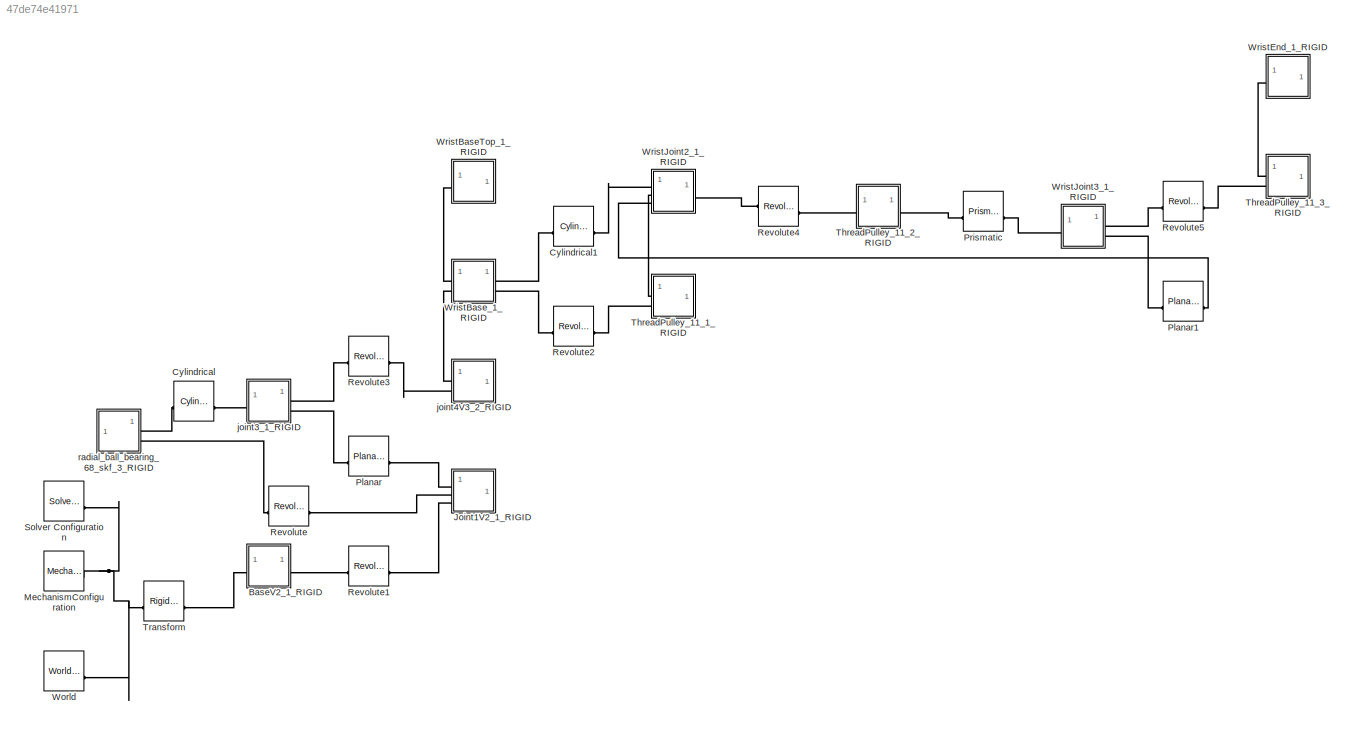
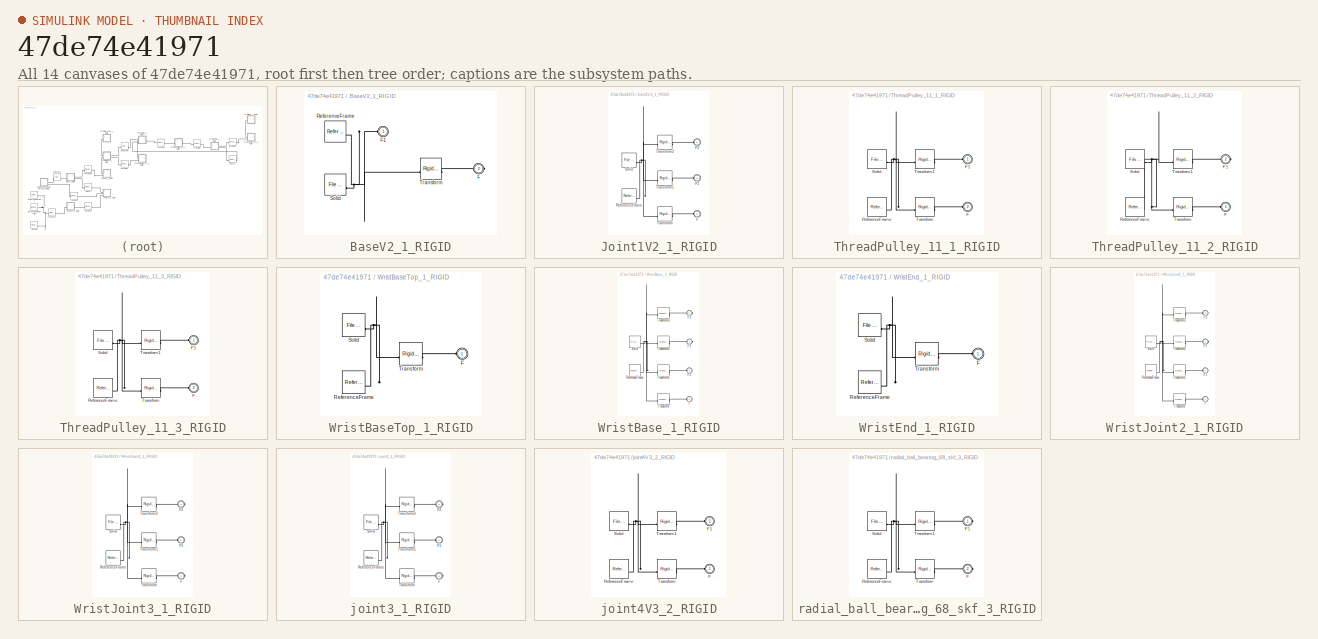
[diagram: thumbnail index - all 14 canvases of the model, root first then tree order]
MODEL slx_47de74e41971
KIND model
CONFIG AbsTol = auto
CONFIG EnableMultiTasking = off
CONFIG FixedStep = auto
CONFIG MaxStep = auto
CONFIG MinStep = auto
CONFIG RelTol = 1e-3
CONFIG SampleTimeConstraint = Unconstrained
CONFIG SolverName = VariableStepAuto
CONFIG StartTime = 0.0
CONFIG StopTime = 10.0
WORKSPACE source: external: MATLAB File  (data not in archive)
BLOCK [SubSystem] BaseV2_1_RIGID
BLOCK [PMIOPort] BaseV2_1_RIGID/F
  Port = 2
  Side = Right
BLOCK [PMIOPort] BaseV2_1_RIGID/F1
  Side = Left
BLOCK [Reference] BaseV2_1_RIGID/ReferenceFrame  REF=sm_lib/Frames and
Transforms/Reference
Frame
  SourceBlock = sm_lib/Frames and\nTransforms/Reference\nFrame
  SourceType = Reference\nFrame
BLOCK [Reference] BaseV2_1_RIGID/Solid  REF=sm_lib/Body Elements/File Solid
  SourceBlock = sm_lib/Body Elements/File Solid
  SourceType = File Solid
BLOCK [Reference] BaseV2_1_RIGID/Transform  REF=sm_lib/Frames and
Transforms/Rigid
Transform
  SourceBlock = sm_lib/Frames and\nTransforms/Rigid\nTransform
  SourceType = Rigid\nTransform
BLOCK [Reference] Cylindrical  REF=sm_lib/Joints/Cylindrical
Joint
  SourceBlock = sm_lib/Joints/Cylindrical\nJoint
  SourceType = Cylindrical\nJoint
BLOCK [Reference] Cylindrical1  REF=sm_lib/Joints/Cylindrical
Joint
  SourceBlock = sm_lib/Joints/Cylindrical\nJoint
  SourceType = Cylindrical\nJoint
BLOCK [SubSystem] Joint1V2_1_RIGID
BLOCK [PMIOPort] Joint1V2_1_RIGID/F
  Port = 2
  Side = Left
BLOCK [PMIOPort] Joint1V2_1_RIGID/F1
  Port = 3
  Side = Left
BLOCK [PMIOPort] Joint1V2_1_RIGID/F2
  Side = Left
BLOCK [Reference] Joint1V2_1_RIGID/ReferenceFrame  REF=sm_lib/Frames and
Transforms/Reference
Frame
  SourceBlock = sm_lib/Frames and\nTransforms/Reference\nFrame
  SourceType = Reference\nFrame
BLOCK [Reference] Joint1V2_1_RIGID/Solid  REF=sm_lib/Body Elements/File Solid
  SourceBlock = sm_lib/Body Elements/File Solid
  SourceType = File Solid
BLOCK [Reference] Joint1V2_1_RIGID/Transform  REF=sm_lib/Frames and
Transforms/Rigid
Transform
  SourceBlock = sm_lib/Frames and\nTransforms/Rigid\nTransform
  SourceType = Rigid\nTransform
BLOCK [Reference] Joint1V2_1_RIGID/Transform1  REF=sm_lib/Frames and
Transforms/Rigid
Transform
  SourceBlock = sm_lib/Frames and\nTransforms/Rigid\nTransform
  SourceType = Rigid\nTransform
BLOCK [Reference] Joint1V2_1_RIGID/Transform2  REF=sm_lib/Frames and
Transforms/Rigid
Transform
  SourceBlock = sm_lib/Frames and\nTransforms/Rigid\nTransform
  SourceType = Rigid\nTransform
BLOCK [Reference] MechanismConfiguration  REF=sm_lib/Utilities/Mechanism
Configuration
  SourceBlock = sm_lib/Utilities/Mechanism\nConfiguration
  SourceType = Mechanism\nConfiguration
BLOCK [Reference] Planar  REF=sm_lib/Joints/Planar Joint
  SourceBlock = sm_lib/Joints/Planar Joint
  SourceType = Planar Joint
BLOCK [Reference] Planar1  REF=sm_lib/Joints/Planar Joint
  SourceBlock = sm_lib/Joints/Planar Joint
  SourceType = Planar Joint
BLOCK [Reference] Prismatic  REF=sm_lib/Joints/Prismatic
Joint
  SourceBlock = sm_lib/Joints/Prismatic\nJoint
  SourceType = Prismatic\nJoint
BLOCK [Reference] Revolute  REF=sm_lib/Joints/Revolute Joint
  SourceBlock = sm_lib/Joints/Revolute Joint
  SourceType = Revolute Joint
BLOCK [Reference] Revolute1  REF=sm_lib/Joints/Revolute Joint
  SourceBlock = sm_lib/Joints/Revolute Joint
  SourceType = Revolute Joint
BLOCK [Reference] Revolute2  REF=sm_lib/Joints/Revolute Joint
  SourceBlock = sm_lib/Joints/Revolute Joint
  SourceType = Revolute Joint
BLOCK [Reference] Revolute3  REF=sm_lib/Joints/Revolute Joint
  SourceBlock = sm_lib/Joints/Revolute Joint
  SourceType = Revolute Joint
BLOCK [Reference] Revolute4  REF=sm_lib/Joints/Revolute Joint
  SourceBlock = sm_lib/Joints/Revolute Joint
  SourceType = Revolute Joint
BLOCK [Reference] Revolute5  REF=sm_lib/Joints/Revolute Joint
  SourceBlock = sm_lib/Joints/Revolute Joint
  SourceType = Revolute Joint
BLOCK [Reference] Solver Configuration  REF=nesl_utility/Solver
Configuration
  SourceBlock = nesl_utility/Solver\nConfiguration
  SourceType = Solver\nConfiguration
BLOCK [SubSystem] ThreadPulley_11_1_RIGID
BLOCK [PMIOPort] ThreadPulley_11_1_RIGID/F
  Port = 2
  Side = Left
BLOCK [PMIOPort] ThreadPulley_11_1_RIGID/F1
  Side = Left
BLOCK [Reference] ThreadPulley_11_1_RIGID/ReferenceFrame  REF=sm_lib/Frames and
Transforms/Reference
Frame
  SourceBlock = sm_lib/Frames and\nTransforms/Reference\nFrame
  SourceType = Reference\nFrame
BLOCK [Reference] ThreadPulley_11_1_RIGID/Solid  REF=sm_lib/Body Elements/File Solid
  SourceBlock = sm_lib/Body Elements/File Solid
  SourceType = File Solid
BLOCK [Reference] ThreadPulley_11_1_RIGID/Transform  REF=sm_lib/Frames and
Transforms/Rigid
Transform
  SourceBlock = sm_lib/Frames and\nTransforms/Rigid\nTransform
  SourceType = Rigid\nTransform
BLOCK [Reference] ThreadPulley_11_1_RIGID/Transform1  REF=sm_lib/Frames and
Transforms/Rigid
Transform
  SourceBlock = sm_lib/Frames and\nTransforms/Rigid\nTransform
  SourceType = Rigid\nTransform
BLOCK [SubSystem] ThreadPulley_11_2_RIGID
BLOCK [PMIOPort] ThreadPulley_11_2_RIGID/F
  Side = Left
BLOCK [PMIOPort] ThreadPulley_11_2_RIGID/F1
  Port = 2
  Side = Right
BLOCK [Reference] ThreadPulley_11_2_RIGID/ReferenceFrame  REF=sm_lib/Frames and
Transforms/Reference
Frame
  SourceBlock = sm_lib/Frames and\nTransforms/Reference\nFrame
  SourceType = Reference\nFrame
BLOCK [Reference] ThreadPulley_11_2_RIGID/Solid  REF=sm_lib/Body Elements/File Solid
  SourceBlock = sm_lib/Body Elements/File Solid
  SourceType = File Solid
BLOCK [Reference] ThreadPulley_11_2_RIGID/Transform  REF=sm_lib/Frames and
Transforms/Rigid
Transform
  SourceBlock = sm_lib/Frames and\nTransforms/Rigid\nTransform
  SourceType = Rigid\nTransform
BLOCK [Reference] ThreadPulley_11_2_RIGID/Transform1  REF=sm_lib/Frames and
Transforms/Rigid
Transform
  SourceBlock = sm_lib/Frames and\nTransforms/Rigid\nTransform
  SourceType = Rigid\nTransform
BLOCK [SubSystem] ThreadPulley_11_3_RIGID
BLOCK [PMIOPort] ThreadPulley_11_3_RIGID/F
  Port = 2
  Side = Left
BLOCK [PMIOPort] ThreadPulley_11_3_RIGID/F1
  Side = Left
BLOCK [Reference] ThreadPulley_11_3_RIGID/ReferenceFrame  REF=sm_lib/Frames and
Transforms/Reference
Frame
  SourceBlock = sm_lib/Frames and\nTransforms/Reference\nFrame
  SourceType = Reference\nFrame
BLOCK [Reference] ThreadPulley_11_3_RIGID/Solid  REF=sm_lib/Body Elements/File Solid
  SourceBlock = sm_lib/Body Elements/File Solid
  SourceType = File Solid
BLOCK [Reference] ThreadPulley_11_3_RIGID/Transform  REF=sm_lib/Frames and
Transforms/Rigid
Transform
  SourceBlock = sm_lib/Frames and\nTransforms/Rigid\nTransform
  SourceType = Rigid\nTransform
BLOCK [Reference] ThreadPulley_11_3_RIGID/Transform1  REF=sm_lib/Frames and
Transforms/Rigid
Transform
  SourceBlock = sm_lib/Frames and\nTransforms/Rigid\nTransform
  SourceType = Rigid\nTransform
BLOCK [Reference] Transform  REF=sm_lib/Frames and
Transforms/Rigid
Transform
  SourceBlock = sm_lib/Frames and\nTransforms/Rigid\nTransform
  SourceType = Rigid\nTransform
BLOCK [Reference] World  REF=sm_lib/Frames and
Transforms/World Frame
  SourceBlock = sm_lib/Frames and\nTransforms/World Frame
  SourceType = World Frame
BLOCK [SubSystem] WristBaseTop_1_RIGID
BLOCK [PMIOPort] WristBaseTop_1_RIGID/F
  Side = Left
BLOCK [Reference] WristBaseTop_1_RIGID/ReferenceFrame  REF=sm_lib/Frames and
Transforms/Reference
Frame
  SourceBlock = sm_lib/Frames and\nTransforms/Reference\nFrame
  SourceType = Reference\nFrame
BLOCK [Reference] WristBaseTop_1_RIGID/Solid  REF=sm_lib/Body Elements/File Solid
  SourceBlock = sm_lib/Body Elements/File Solid
  SourceType = File Solid
BLOCK [Reference] WristBaseTop_1_RIGID/Transform  REF=sm_lib/Frames and
Transforms/Rigid
Transform
  SourceBlock = sm_lib/Frames and\nTransforms/Rigid\nTransform
  SourceType = Rigid\nTransform
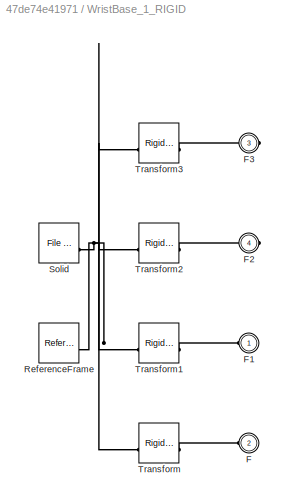
BLOCK [SubSystem] WristBase_1_RIGID
BLOCK [PMIOPort] WristBase_1_RIGID/F
  Port = 2
  Side = Left
BLOCK [PMIOPort] WristBase_1_RIGID/F1
  Side = Left
BLOCK [PMIOPort] WristBase_1_RIGID/F2
  Port = 4
  Side = Right
BLOCK [PMIOPort] WristBase_1_RIGID/F3
  Port = 3
  Side = Right
BLOCK [Reference] WristBase_1_RIGID/ReferenceFrame  REF=sm_lib/Frames and
Transforms/Reference
Frame
  SourceBlock = sm_lib/Frames and\nTransforms/Reference\nFrame
  SourceType = Reference\nFrame
BLOCK [Reference] WristBase_1_RIGID/Solid  REF=sm_lib/Body Elements/File Solid
  SourceBlock = sm_lib/Body Elements/File Solid
  SourceType = File Solid
BLOCK [Reference] WristBase_1_RIGID/Transform  REF=sm_lib/Frames and
Transforms/Rigid
Transform
  SourceBlock = sm_lib/Frames and\nTransforms/Rigid\nTransform
  SourceType = Rigid\nTransform
BLOCK [Reference] WristBase_1_RIGID/Transform1  REF=sm_lib/Frames and
Transforms/Rigid
Transform
  SourceBlock = sm_lib/Frames and\nTransforms/Rigid\nTransform
  SourceType = Rigid\nTransform
BLOCK [Reference] WristBase_1_RIGID/Transform2  REF=sm_lib/Frames and
Transforms/Rigid
Transform
  SourceBlock = sm_lib/Frames and\nTransforms/Rigid\nTransform
  SourceType = Rigid\nTransform
BLOCK [Reference] WristBase_1_RIGID/Transform3  REF=sm_lib/Frames and
Transforms/Rigid
Transform
  SourceBlock = sm_lib/Frames and\nTransforms/Rigid\nTransform
  SourceType = Rigid\nTransform
BLOCK [SubSystem] WristEnd_1_RIGID
BLOCK [PMIOPort] WristEnd_1_RIGID/F
  Side = Left
BLOCK [Reference] WristEnd_1_RIGID/ReferenceFrame  REF=sm_lib/Frames and
Transforms/Reference
Frame
  SourceBlock = sm_lib/Frames and\nTransforms/Reference\nFrame
  SourceType = Reference\nFrame
BLOCK [Reference] WristEnd_1_RIGID/Solid  REF=sm_lib/Body Elements/File Solid
  SourceBlock = sm_lib/Body Elements/File Solid
  SourceType = File Solid
BLOCK [Reference] WristEnd_1_RIGID/Transform  REF=sm_lib/Frames and
Transforms/Rigid
Transform
  SourceBlock = sm_lib/Frames and\nTransforms/Rigid\nTransform
  SourceType = Rigid\nTransform
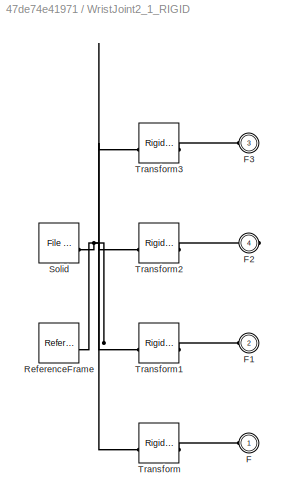
BLOCK [SubSystem] WristJoint2_1_RIGID
BLOCK [PMIOPort] WristJoint2_1_RIGID/F
  Side = Left
BLOCK [PMIOPort] WristJoint2_1_RIGID/F1
  Port = 2
  Side = Left
BLOCK [PMIOPort] WristJoint2_1_RIGID/F2
  Port = 4
  Side = Right
BLOCK [PMIOPort] WristJoint2_1_RIGID/F3
  Port = 3
  Side = Left
BLOCK [Reference] WristJoint2_1_RIGID/ReferenceFrame  REF=sm_lib/Frames and
Transforms/Reference
Frame
  SourceBlock = sm_lib/Frames and\nTransforms/Reference\nFrame
  SourceType = Reference\nFrame
BLOCK [Reference] WristJoint2_1_RIGID/Solid  REF=sm_lib/Body Elements/File Solid
  SourceBlock = sm_lib/Body Elements/File Solid
  SourceType = File Solid
BLOCK [Reference] WristJoint2_1_RIGID/Transform  REF=sm_lib/Frames and
Transforms/Rigid
Transform
  SourceBlock = sm_lib/Frames and\nTransforms/Rigid\nTransform
  SourceType = Rigid\nTransform
BLOCK [Reference] WristJoint2_1_RIGID/Transform1  REF=sm_lib/Frames and
Transforms/Rigid
Transform
  SourceBlock = sm_lib/Frames and\nTransforms/Rigid\nTransform
  SourceType = Rigid\nTransform
BLOCK [Reference] WristJoint2_1_RIGID/Transform2  REF=sm_lib/Frames and
Transforms/Rigid
Transform
  SourceBlock = sm_lib/Frames and\nTransforms/Rigid\nTransform
  SourceType = Rigid\nTransform
BLOCK [Reference] WristJoint2_1_RIGID/Transform3  REF=sm_lib/Frames and
Transforms/Rigid
Transform
  SourceBlock = sm_lib/Frames and\nTransforms/Rigid\nTransform
  SourceType = Rigid\nTransform
BLOCK [SubSystem] WristJoint3_1_RIGID
BLOCK [PMIOPort] WristJoint3_1_RIGID/F
  Port = 3
  Side = Right
BLOCK [PMIOPort] WristJoint3_1_RIGID/F1
  Side = Left
BLOCK [PMIOPort] WristJoint3_1_RIGID/F2
  Port = 2
  Side = Right
BLOCK [Reference] WristJoint3_1_RIGID/ReferenceFrame  REF=sm_lib/Frames and
Transforms/Reference
Frame
  SourceBlock = sm_lib/Frames and\nTransforms/Reference\nFrame
  SourceType = Reference\nFrame
BLOCK [Reference] WristJoint3_1_RIGID/Solid  REF=sm_lib/Body Elements/File Solid
  SourceBlock = sm_lib/Body Elements/File Solid
  SourceType = File Solid
BLOCK [Reference] WristJoint3_1_RIGID/Transform  REF=sm_lib/Frames and
Transforms/Rigid
Transform
  SourceBlock = sm_lib/Frames and\nTransforms/Rigid\nTransform
  SourceType = Rigid\nTransform
BLOCK [Reference] WristJoint3_1_RIGID/Transform1  REF=sm_lib/Frames and
Transforms/Rigid
Transform
  SourceBlock = sm_lib/Frames and\nTransforms/Rigid\nTransform
  SourceType = Rigid\nTransform
BLOCK [Reference] WristJoint3_1_RIGID/Transform2  REF=sm_lib/Frames and
Transforms/Rigid
Transform
  SourceBlock = sm_lib/Frames and\nTransforms/Rigid\nTransform
  SourceType = Rigid\nTransform
BLOCK [SubSystem] joint3_1_RIGID
BLOCK [PMIOPort] joint3_1_RIGID/F
  Port = 3
  Side = Right
BLOCK [PMIOPort] joint3_1_RIGID/F1
  Side = Left
BLOCK [PMIOPort] joint3_1_RIGID/F2
  Port = 2
  Side = Right
BLOCK [Reference] joint3_1_RIGID/ReferenceFrame  REF=sm_lib/Frames and
Transforms/Reference
Frame
  SourceBlock = sm_lib/Frames and\nTransforms/Reference\nFrame
  SourceType = Reference\nFrame
BLOCK [Reference] joint3_1_RIGID/Solid  REF=sm_lib/Body Elements/File Solid
  SourceBlock = sm_lib/Body Elements/File Solid
  SourceType = File Solid
BLOCK [Reference] joint3_1_RIGID/Transform  REF=sm_lib/Frames and
Transforms/Rigid
Transform
  SourceBlock = sm_lib/Frames and\nTransforms/Rigid\nTransform
  SourceType = Rigid\nTransform
BLOCK [Reference] joint3_1_RIGID/Transform1  REF=sm_lib/Frames and
Transforms/Rigid
Transform
  SourceBlock = sm_lib/Frames and\nTransforms/Rigid\nTransform
  SourceType = Rigid\nTransform
BLOCK [Reference] joint3_1_RIGID/Transform2  REF=sm_lib/Frames and
Transforms/Rigid
Transform
  SourceBlock = sm_lib/Frames and\nTransforms/Rigid\nTransform
  SourceType = Rigid\nTransform
BLOCK [SubSystem] joint4V3_2_RIGID
BLOCK [PMIOPort] joint4V3_2_RIGID/F
  Side = Left
BLOCK [PMIOPort] joint4V3_2_RIGID/F1
  Port = 2
  Side = Left
BLOCK [Reference] joint4V3_2_RIGID/ReferenceFrame  REF=sm_lib/Frames and
Transforms/Reference
Frame
  SourceBlock = sm_lib/Frames and\nTransforms/Reference\nFrame
  SourceType = Reference\nFrame
BLOCK [Reference] joint4V3_2_RIGID/Solid  REF=sm_lib/Body Elements/File Solid
  SourceBlock = sm_lib/Body Elements/File Solid
  SourceType = File Solid
BLOCK [Reference] joint4V3_2_RIGID/Transform  REF=sm_lib/Frames and
Transforms/Rigid
Transform
  SourceBlock = sm_lib/Frames and\nTransforms/Rigid\nTransform
  SourceType = Rigid\nTransform
BLOCK [Reference] joint4V3_2_RIGID/Transform1  REF=sm_lib/Frames and
Transforms/Rigid
Transform
  SourceBlock = sm_lib/Frames and\nTransforms/Rigid\nTransform
  SourceType = Rigid\nTransform
BLOCK [SubSystem] radial_ball_bearing_68_skf_3_RIGID
BLOCK [PMIOPort] radial_ball_bearing_68_skf_3_RIGID/F
  Port = 2
  Side = Right
BLOCK [PMIOPort] radial_ball_bearing_68_skf_3_RIGID/F1
  Side = Right
BLOCK [Reference] radial_ball_bearing_68_skf_3_RIGID/ReferenceFrame  REF=sm_lib/Frames and
Transforms/Reference
Frame
  SourceBlock = sm_lib/Frames and\nTransforms/Reference\nFrame
  SourceType = Reference\nFrame
BLOCK [Reference] radial_ball_bearing_68_skf_3_RIGID/Solid  REF=sm_lib/Body Elements/File Solid
  SourceBlock = sm_lib/Body Elements/File Solid
  SourceType = File Solid
BLOCK [Reference] radial_ball_bearing_68_skf_3_RIGID/Transform  REF=sm_lib/Frames and
Transforms/Rigid
Transform
  SourceBlock = sm_lib/Frames and\nTransforms/Rigid\nTransform
  SourceType = Rigid\nTransform
BLOCK [Reference] radial_ball_bearing_68_skf_3_RIGID/Transform1  REF=sm_lib/Frames and
Transforms/Rigid
Transform
  SourceBlock = sm_lib/Frames and\nTransforms/Rigid\nTransform
  SourceType = Rigid\nTransform
PNET net1: BaseV2_1_RIGID/F1:RConn1 -- BaseV2_1_RIGID/ReferenceFrame:RConn1 -- BaseV2_1_RIGID/Solid:RConn1 -- BaseV2_1_RIGID/Transform:LConn1
PLINE BaseV2_1_RIGID/F:RConn1 -- BaseV2_1_RIGID/Transform:RConn1
PLINE BaseV2_1_RIGID:LConn1 -- Transform:RConn1
PLINE BaseV2_1_RIGID:RConn1 -- Revolute1:LConn1
PLINE Cylindrical1:LConn1 -- WristBase_1_RIGID:RConn1
PLINE Cylindrical1:RConn1 -- WristJoint2_1_RIGID:LConn1
PLINE Cylindrical:LConn1 -- radial_ball_bearing_68_skf_3_RIGID:RConn1
PLINE Cylindrical:RConn1 -- joint3_1_RIGID:LConn1
PLINE Joint1V2_1_RIGID/F1:RConn1 -- Joint1V2_1_RIGID/Transform1:RConn1
PLINE Joint1V2_1_RIGID/F2:RConn1 -- Joint1V2_1_RIGID/Transform2:RConn1
PLINE Joint1V2_1_RIGID/F:RConn1 -- Joint1V2_1_RIGID/Transform:RConn1
PNET net2: Joint1V2_1_RIGID/ReferenceFrame:RConn1 -- Joint1V2_1_RIGID/Solid:RConn1 -- Joint1V2_1_RIGID/Transform1:LConn1 -- Joint1V2_1_RIGID/Transform2:LConn1 -- Joint1V2_1_RIGID/Transform:LConn1
PLINE Joint1V2_1_RIGID:LConn1 -- Planar:RConn1
PLINE Joint1V2_1_RIGID:LConn2 -- Revolute:RConn1
PLINE Joint1V2_1_RIGID:LConn3 -- Revolute1:RConn1
PNET net3: MechanismConfiguration:RConn1 -- Solver Configuration:RConn1 -- Transform:LConn1 -- World:RConn1
PLINE Planar1:LConn1 -- WristJoint3_1_RIGID:RConn2
PLINE Planar1:RConn1 -- WristJoint2_1_RIGID:LConn3
PLINE Planar:LConn1 -- joint3_1_RIGID:RConn2
PLINE Prismatic:LConn1 -- ThreadPulley_11_2_RIGID:RConn1
PLINE Prismatic:RConn1 -- WristJoint3_1_RIGID:LConn1
PLINE Revolute2:LConn1 -- WristBase_1_RIGID:RConn2
PLINE Revolute2:RConn1 -- ThreadPulley_11_1_RIGID:LConn2
PLINE Revolute3:LConn1 -- joint3_1_RIGID:RConn1
PLINE Revolute3:RConn1 -- joint4V3_2_RIGID:LConn2
PLINE Revolute4:LConn1 -- WristJoint2_1_RIGID:RConn1
PLINE Revolute4:RConn1 -- ThreadPulley_11_2_RIGID:LConn1
PLINE Revolute5:LConn1 -- WristJoint3_1_RIGID:RConn1
PLINE Revolute5:RConn1 -- ThreadPulley_11_3_RIGID:LConn2
PLINE Revolute:LConn1 -- radial_ball_bearing_68_skf_3_RIGID:RConn2
PLINE ThreadPulley_11_1_RIGID/F1:RConn1 -- ThreadPulley_11_1_RIGID/Transform1:RConn1
PLINE ThreadPulley_11_1_RIGID/F:RConn1 -- ThreadPulley_11_1_RIGID/Transform:RConn1
PNET net4: ThreadPulley_11_1_RIGID/ReferenceFrame:RConn1 -- ThreadPulley_11_1_RIGID/Solid:RConn1 -- ThreadPulley_11_1_RIGID/Transform1:LConn1 -- ThreadPulley_11_1_RIGID/Transform:LConn1
PLINE ThreadPulley_11_1_RIGID:LConn1 -- WristJoint2_1_RIGID:LConn2
PLINE ThreadPulley_11_2_RIGID/F1:RConn1 -- ThreadPulley_11_2_RIGID/Transform1:RConn1
PLINE ThreadPulley_11_2_RIGID/F:RConn1 -- ThreadPulley_11_2_RIGID/Transform:RConn1
PNET net5: ThreadPulley_11_2_RIGID/ReferenceFrame:RConn1 -- ThreadPulley_11_2_RIGID/Solid:RConn1 -- ThreadPulley_11_2_RIGID/Transform1:LConn1 -- ThreadPulley_11_2_RIGID/Transform:LConn1
PLINE ThreadPulley_11_3_RIGID/F1:RConn1 -- ThreadPulley_11_3_RIGID/Transform1:RConn1
PLINE ThreadPulley_11_3_RIGID/F:RConn1 -- ThreadPulley_11_3_RIGID/Transform:RConn1
PNET net6: ThreadPulley_11_3_RIGID/ReferenceFrame:RConn1 -- ThreadPulley_11_3_RIGID/Solid:RConn1 -- ThreadPulley_11_3_RIGID/Transform1:LConn1 -- ThreadPulley_11_3_RIGID/Transform:LConn1
PLINE ThreadPulley_11_3_RIGID:LConn1 -- WristEnd_1_RIGID:LConn1
PLINE WristBaseTop_1_RIGID/F:RConn1 -- WristBaseTop_1_RIGID/Transform:RConn1
PNET net7: WristBaseTop_1_RIGID/ReferenceFrame:RConn1 -- WristBaseTop_1_RIGID/Solid:RConn1 -- WristBaseTop_1_RIGID/Transform:LConn1
PLINE WristBaseTop_1_RIGID:LConn1 -- WristBase_1_RIGID:LConn1
PLINE WristBase_1_RIGID/F1:RConn1 -- WristBase_1_RIGID/Transform1:RConn1
PLINE WristBase_1_RIGID/F2:RConn1 -- WristBase_1_RIGID/Transform2:RConn1
PLINE WristBase_1_RIGID/F3:RConn1 -- WristBase_1_RIGID/Transform3:RConn1
PLINE WristBase_1_RIGID/F:RConn1 -- WristBase_1_RIGID/Transform:RConn1
PNET net8: WristBase_1_RIGID/ReferenceFrame:RConn1 -- WristBase_1_RIGID/Solid:RConn1 -- WristBase_1_RIGID/Transform1:LConn1 -- WristBase_1_RIGID/Transform2:LConn1 -- WristBase_1_RIGID/Transform3:LConn1 -- WristBase_1_RIGID/Transform:LConn1
PLINE WristBase_1_RIGID:LConn2 -- joint4V3_2_RIGID:LConn1
PLINE WristEnd_1_RIGID/F:RConn1 -- WristEnd_1_RIGID/Transform:RConn1
PNET net9: WristEnd_1_RIGID/ReferenceFrame:RConn1 -- WristEnd_1_RIGID/Solid:RConn1 -- WristEnd_1_RIGID/Transform:LConn1
PLINE WristJoint2_1_RIGID/F1:RConn1 -- WristJoint2_1_RIGID/Transform1:RConn1
PLINE WristJoint2_1_RIGID/F2:RConn1 -- WristJoint2_1_RIGID/Transform2:RConn1
PLINE WristJoint2_1_RIGID/F3:RConn1 -- WristJoint2_1_RIGID/Transform3:RConn1
PLINE WristJoint2_1_RIGID/F:RConn1 -- WristJoint2_1_RIGID/Transform:RConn1
PNET net10: WristJoint2_1_RIGID/ReferenceFrame:RConn1 -- WristJoint2_1_RIGID/Solid:RConn1 -- WristJoint2_1_RIGID/Transform1:LConn1 -- WristJoint2_1_RIGID/Transform2:LConn1 -- WristJoint2_1_RIGID/Transform3:LConn1 -- WristJoint2_1_RIGID/Transform:LConn1
PLINE WristJoint3_1_RIGID/F1:RConn1 -- WristJoint3_1_RIGID/Transform1:RConn1
PLINE WristJoint3_1_RIGID/F2:RConn1 -- WristJoint3_1_RIGID/Transform2:RConn1
PLINE WristJoint3_1_RIGID/F:RConn1 -- WristJoint3_1_RIGID/Transform:RConn1
PNET net11: WristJoint3_1_RIGID/ReferenceFrame:RConn1 -- WristJoint3_1_RIGID/Solid:RConn1 -- WristJoint3_1_RIGID/Transform1:LConn1 -- WristJoint3_1_RIGID/Transform2:LConn1 -- WristJoint3_1_RIGID/Transform:LConn1
PLINE joint3_1_RIGID/F1:RConn1 -- joint3_1_RIGID/Transform1:RConn1
PLINE joint3_1_RIGID/F2:RConn1 -- joint3_1_RIGID/Transform2:RConn1
PLINE joint3_1_RIGID/F:RConn1 -- joint3_1_RIGID/Transform:RConn1
PNET net12: joint3_1_RIGID/ReferenceFrame:RConn1 -- joint3_1_RIGID/Solid:RConn1 -- joint3_1_RIGID/Transform1:LConn1 -- joint3_1_RIGID/Transform2:LConn1 -- joint3_1_RIGID/Transform:LConn1
PLINE joint4V3_2_RIGID/F1:RConn1 -- joint4V3_2_RIGID/Transform1:RConn1
PLINE joint4V3_2_RIGID/F:RConn1 -- joint4V3_2_RIGID/Transform:RConn1
PNET net13: joint4V3_2_RIGID/ReferenceFrame:RConn1 -- joint4V3_2_RIGID/Solid:RConn1 -- joint4V3_2_RIGID/Transform1:LConn1 -- joint4V3_2_RIGID/Transform:LConn1
PLINE radial_ball_bearing_68_skf_3_RIGID/F1:RConn1 -- radial_ball_bearing_68_skf_3_RIGID/Transform1:RConn1
PLINE radial_ball_bearing_68_skf_3_RIGID/F:RConn1 -- radial_ball_bearing_68_skf_3_RIGID/Transform:RConn1
PNET net14: radial_ball_bearing_68_skf_3_RIGID/ReferenceFrame:RConn1 -- radial_ball_bearing_68_skf_3_RIGID/Solid:RConn1 -- radial_ball_bearing_68_skf_3_RIGID/Transform1:LConn1 -- radial_ball_bearing_68_skf_3_RIGID/Transform:LConn1
note: PNET lines group multi-terminal physical nets as a canonical sorted terminal list (undirected conserving connections); 2-terminal nets keep the pairwise PLINE form
